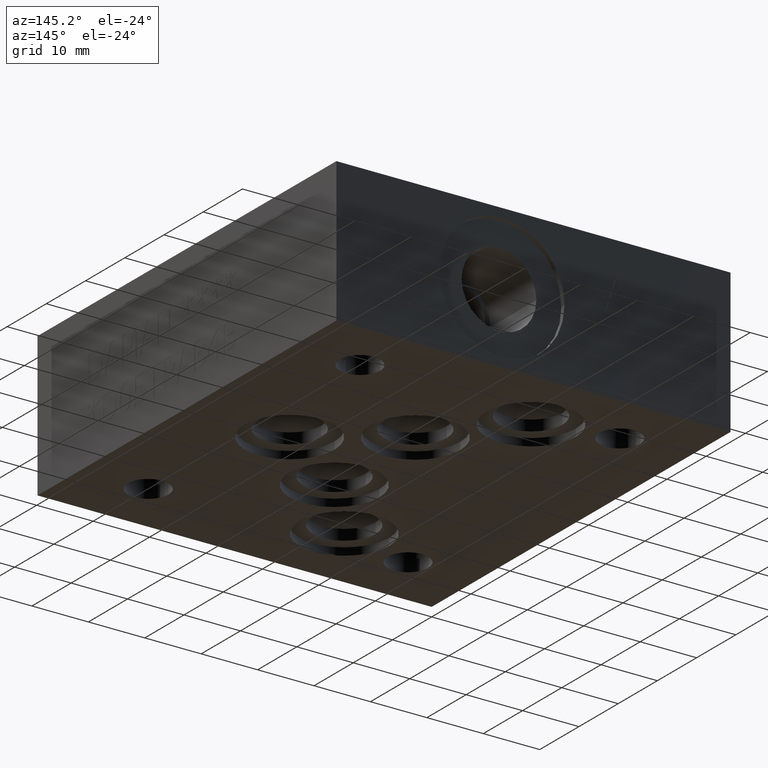
[diagram: clean part render]
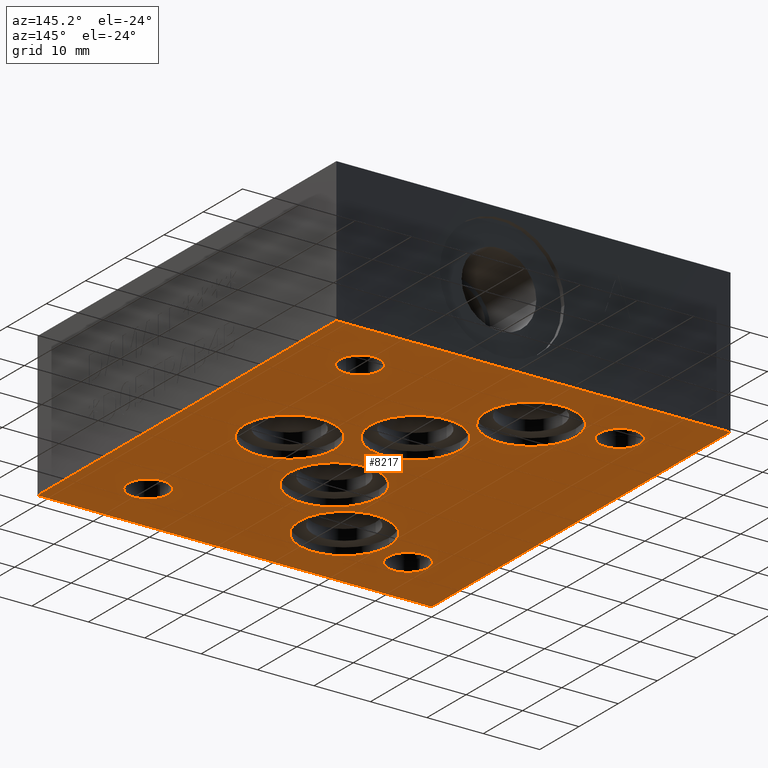
[diagram: same view with one face highlighted and labeled with its STEP entity id]
A machine part, auxiliary view. The second image highlights one B-rep face of the part: STEP entity #8217.
In plain terms, the highlighted planar face has unit normal (0, 0, 1).
Its self-contained STEP definition (entity closure, byte-faithful):
#75=CIRCLE('',#8565,7.9375);
#77=CIRCLE('',#8569,7.9375);
#79=CIRCLE('',#8573,7.9375);
#81=CIRCLE('',#8577,7.9375);
#83=CIRCLE('',#8581,7.9375);
#86=CIRCLE('',#8587,3.5687);
#88=CIRCLE('',#8591,3.5687);
#90=CIRCLE('',#8595,3.5687);
#92=CIRCLE('',#8599,3.5687);
#93=CIRCLE('',#8601,3.5687);
#94=CIRCLE('',#8602,3.5687);
#95=CIRCLE('',#8603,3.5687);
#96=CIRCLE('',#8604,3.5687);
#97=CIRCLE('',#8605,3.5687);
#98=CIRCLE('',#8606,3.5687);
#99=CIRCLE('',#8607,3.5687);
#100=CIRCLE('',#8608,3.5687);
#172=FACE_BOUND('',#1343,.T.);
#173=FACE_BOUND('',#1344,.T.);
#174=FACE_BOUND('',#1345,.T.);
#175=FACE_BOUND('',#1346,.T.);
#176=FACE_BOUND('',#1347,.T.);
#177=FACE_BOUND('',#1348,.T.);
#178=FACE_BOUND('',#1349,.T.);
#179=FACE_BOUND('',#1350,.T.);
#180=FACE_BOUND('',#1351,.T.);
#471=PLANE('',#8600);
#872=FACE_OUTER_BOUND('',#1342,.T.);
#1342=EDGE_LOOP('',(#7214,#7215,#7216,#7217));
#1343=EDGE_LOOP('',(#7218));
#1344=EDGE_LOOP('',(#7219));
#1345=EDGE_LOOP('',(#7220));
#1346=EDGE_LOOP('',(#7221));
#1347=EDGE_LOOP('',(#7222));
#1348=EDGE_LOOP('',(#7223,#7224,#7225));
#1349=EDGE_LOOP('',(#7226,#7227,#7228));
#1350=EDGE_LOOP('',(#7229,#7230,#7231));
#1351=EDGE_LOOP('',(#7232,#7233,#7234));
#1745=LINE('',#12215,#2605);
#2159=LINE('',#13200,#3019);
#2206=LINE('',#13535,#3066);
#2232=LINE('',#13749,#3092);
#2605=VECTOR('',#9225,10.);
#3019=VECTOR('',#9951,10.);
#3066=VECTOR('',#10024,10.);
#3092=VECTOR('',#10168,10.);
#3628=VERTEX_POINT('',#12213);
#3629=VERTEX_POINT('',#12214);
#3916=VERTEX_POINT('',#13199);
#3967=VERTEX_POINT('',#13534);
#3985=VERTEX_POINT('',#13588);
#3987=VERTEX_POINT('',#13595);
#3989=VERTEX_POINT('',#13602);
#3991=VERTEX_POINT('',#13609);
#3993=VERTEX_POINT('',#13616);
#3997=VERTEX_POINT('',#13648);
#3998=VERTEX_POINT('',#13650);
#4001=VERTEX_POINT('',#13679);
#4002=VERTEX_POINT('',#13681);
#4005=VERTEX_POINT('',#13712);
#4006=VERTEX_POINT('',#13714);
#4009=VERTEX_POINT('',#13743);
#4010=VERTEX_POINT('',#13745);
#4011=VERTEX_POINT('',#13750);
#4012=VERTEX_POINT('',#13753);
#4013=VERTEX_POINT('',#13756);
#4014=VERTEX_POINT('',#13759);
#4533=EDGE_CURVE('',#3628,#3629,#1745,.T.);
#4963=EDGE_CURVE('',#3629,#3916,#2159,.T.);
#5039=EDGE_CURVE('',#3967,#3628,#2206,.T.);
#5063=EDGE_CURVE('',#3985,#3985,#75,.T.);
#5066=EDGE_CURVE('',#3987,#3987,#77,.T.);
#5069=EDGE_CURVE('',#3989,#3989,#79,.T.);
#5072=EDGE_CURVE('',#3991,#3991,#81,.T.);
#5075=EDGE_CURVE('',#3993,#3993,#83,.T.);
#5082=EDGE_CURVE('',#3997,#3998,#86,.T.);
#5087=EDGE_CURVE('',#4001,#4002,#88,.T.);
#5092=EDGE_CURVE('',#4005,#4006,#90,.T.);
#5097=EDGE_CURVE('',#4009,#4010,#92,.T.);
#5098=EDGE_CURVE('',#3916,#3967,#2232,.T.);
#5099=EDGE_CURVE('',#4002,#4011,#93,.T.);
#5100=EDGE_CURVE('',#4011,#4001,#94,.T.);
#5101=EDGE_CURVE('',#4010,#4012,#95,.T.);
#5102=EDGE_CURVE('',#4012,#4009,#96,.T.);
#5103=EDGE_CURVE('',#3998,#4013,#97,.T.);
#5104=EDGE_CURVE('',#4013,#3997,#98,.T.);
#5105=EDGE_CURVE('',#4006,#4014,#99,.T.);
#5106=EDGE_CURVE('',#4014,#4005,#100,.T.);
#7214=ORIENTED_EDGE('',*,*,#5039,.F.);
#7215=ORIENTED_EDGE('',*,*,#5098,.F.);
#7216=ORIENTED_EDGE('',*,*,#4963,.F.);
#7217=ORIENTED_EDGE('',*,*,#4533,.F.);
#7218=ORIENTED_EDGE('',*,*,#5063,.T.);
#7219=ORIENTED_EDGE('',*,*,#5066,.T.);
#7220=ORIENTED_EDGE('',*,*,#5069,.T.);
#7221=ORIENTED_EDGE('',*,*,#5072,.T.);
#7222=ORIENTED_EDGE('',*,*,#5075,.T.);
#7223=ORIENTED_EDGE('',*,*,#5087,.T.);
#7224=ORIENTED_EDGE('',*,*,#5099,.T.);
#7225=ORIENTED_EDGE('',*,*,#5100,.T.);
#7226=ORIENTED_EDGE('',*,*,#5097,.T.);
#7227=ORIENTED_EDGE('',*,*,#5101,.T.);
#7228=ORIENTED_EDGE('',*,*,#5102,.T.);
#7229=ORIENTED_EDGE('',*,*,#5082,.T.);
#7230=ORIENTED_EDGE('',*,*,#5103,.T.);
#7231=ORIENTED_EDGE('',*,*,#5104,.T.);
#7232=ORIENTED_EDGE('',*,*,#5092,.T.);
#7233=ORIENTED_EDGE('',*,*,#5105,.T.);
#7234=ORIENTED_EDGE('',*,*,#5106,.T.);
#8217=ADVANCED_FACE('',(#872,#172,#173,#174,#175,#176,#177,#178,#179,#180),
#471,.F.);
#8565=AXIS2_PLACEMENT_3D('',#13589,#10083,#10084);
#8569=AXIS2_PLACEMENT_3D('',#13596,#10092,#10093);
#8573=AXIS2_PLACEMENT_3D('',#13603,#10101,#10102);
#8577=AXIS2_PLACEMENT_3D('',#13610,#10110,#10111);
#8581=AXIS2_PLACEMENT_3D('',#13617,#10119,#10120);
#8587=AXIS2_PLACEMENT_3D('',#13652,#10134,#10135);
#8591=AXIS2_PLACEMENT_3D('',#13683,#10144,#10145);
#8595=AXIS2_PLACEMENT_3D('',#13716,#10154,#10155);
#8599=AXIS2_PLACEMENT_3D('',#13747,#10164,#10165);
#8600=AXIS2_PLACEMENT_3D('',#13748,#10166,#10167);
#8601=AXIS2_PLACEMENT_3D('',#13751,#10169,#10170);
#8602=AXIS2_PLACEMENT_3D('',#13752,#10171,#10172);
#8603=AXIS2_PLACEMENT_3D('',#13754,#10173,#10174);
#8604=AXIS2_PLACEMENT_3D('',#13755,#10175,#10176);
#8605=AXIS2_PLACEMENT_3D('',#13757,#10177,#10178);
#8606=AXIS2_PLACEMENT_3D('',#13758,#10179,#10180);
#8607=AXIS2_PLACEMENT_3D('',#13760,#10181,#10182);
#8608=AXIS2_PLACEMENT_3D('',#13761,#10183,#10184);
#9225=DIRECTION('',(0.,1.,0.));
#9951=DIRECTION('',(-1.,0.,0.));
#10024=DIRECTION('',(1.,0.,0.));
#10083=DIRECTION('center_axis',(0.,0.,1.));
#10084=DIRECTION('ref_axis',(1.,0.,0.));
#10092=DIRECTION('center_axis',(0.,0.,1.));
#10093=DIRECTION('ref_axis',(1.,0.,0.));
#10101=DIRECTION('center_axis',(0.,0.,1.));
#10102=DIRECTION('ref_axis',(1.,0.,0.));
#10110=DIRECTION('center_axis',(0.,0.,1.));
#10111=DIRECTION('ref_axis',(1.,0.,0.));
#10119=DIRECTION('center_axis',(0.,0.,1.));
#10120=DIRECTION('ref_axis',(1.,0.,0.));
#10134=DIRECTION('center_axis',(0.,0.,1.));
#10135=DIRECTION('ref_axis',(1.,0.,0.));
#10144=DIRECTION('center_axis',(0.,0.,1.));
#10145=DIRECTION('ref_axis',(1.,0.,0.));
#10154=DIRECTION('center_axis',(0.,0.,1.));
#10155=DIRECTION('ref_axis',(1.,0.,0.));
#10164=DIRECTION('center_axis',(0.,0.,1.));
#10165=DIRECTION('ref_axis',(1.,0.,0.));
#10166=DIRECTION('center_axis',(0.,0.,1.));
#10167=DIRECTION('ref_axis',(1.,0.,0.));
#10168=DIRECTION('',(0.,-1.,0.));
#10169=DIRECTION('center_axis',(0.,0.,1.));
#10170=DIRECTION('ref_axis',(1.,0.,0.));
#10171=DIRECTION('center_axis',(0.,0.,1.));
#10172=DIRECTION('ref_axis',(1.,0.,0.));
#10173=DIRECTION('center_axis',(0.,0.,1.));
#10174=DIRECTION('ref_axis',(1.,0.,0.));
#10175=DIRECTION('center_axis',(0.,0.,1.));
#10176=DIRECTION('ref_axis',(1.,0.,0.));
#10177=DIRECTION('center_axis',(0.,0.,1.));
#10178=DIRECTION('ref_axis',(1.,0.,0.));
#10179=DIRECTION('center_axis',(0.,0.,1.));
#10180=DIRECTION('ref_axis',(1.,0.,0.));
#10181=DIRECTION('center_axis',(0.,0.,1.));
#10182=DIRECTION('ref_axis',(1.,0.,0.));
#10183=DIRECTION('center_axis',(0.,0.,1.));
#10184=DIRECTION('ref_axis',(1.,0.,0.));
#12213=CARTESIAN_POINT('',(69.85,0.,0.));
#12214=CARTESIAN_POINT('',(69.85,76.2,0.));
#12215=CARTESIAN_POINT('',(69.85,0.,0.));
#13199=CARTESIAN_POINT('',(0.,76.2,0.));
#13200=CARTESIAN_POINT('',(69.85,76.2,0.));
#13534=CARTESIAN_POINT('',(0.,0.,0.));
#13535=CARTESIAN_POINT('',(0.,0.,0.));
#13588=CARTESIAN_POINT('',(28.60675,27.7749,0.));
#13589=CARTESIAN_POINT('Origin',(36.54425,27.7749,0.));
#13595=CARTESIAN_POINT('',(17.48155,61.9125,0.));
#13596=CARTESIAN_POINT('Origin',(25.41905,61.9125,0.));
#13602=CARTESIAN_POINT('',(43.69435,38.0873,0.));
#13603=CARTESIAN_POINT('Origin',(51.63185,38.0873,0.));
#13609=CARTESIAN_POINT('',(28.58135,48.3997,0.));
#13610=CARTESIAN_POINT('Origin',(36.51885,48.3997,0.));
#13616=CARTESIAN_POINT('',(17.48155,14.2875,0.));
#13617=CARTESIAN_POINT('Origin',(25.41905,14.2875,0.));
#13648=CARTESIAN_POINT('',(54.7613389997801,9.52288199989004,0.));
#13650=CARTESIAN_POINT('',(61.1452110002199,12.71481800011,0.));
#13652=CARTESIAN_POINT('Origin',(57.95645,11.1125,0.));
#13679=CARTESIAN_POINT('',(8.44095075315562,64.2346689382886,0.));
#13681=CARTESIAN_POINT('',(15.3651992468444,65.9657310617114,0.));
#13683=CARTESIAN_POINT('Origin',(11.90625,65.0875,0.));
#13712=CARTESIAN_POINT('',(57.953275,61.5315014123668,0.));
#13714=CARTESIAN_POINT('',(57.953275,68.6688985876332,0.));
#13716=CARTESIAN_POINT('Origin',(57.95645,65.1002,0.));
#13743=CARTESIAN_POINT('',(8.72383899978029,9.52288199988959,0.));
#13745=CARTESIAN_POINT('',(15.1077110002197,12.7148180001104,0.));
#13747=CARTESIAN_POINT('Origin',(11.91895,11.1125,0.));
#13748=CARTESIAN_POINT('Origin',(34.925,38.1,0.));
#13749=CARTESIAN_POINT('',(0.,76.2,0.));
#13750=CARTESIAN_POINT('',(8.3312,65.1129,0.));
#13751=CARTESIAN_POINT('Origin',(11.8999,65.1129,0.));
#13752=CARTESIAN_POINT('Origin',(11.8999,65.1129,0.));
#13753=CARTESIAN_POINT('',(8.3439,11.1252,0.));
#13754=CARTESIAN_POINT('Origin',(11.9126,11.1252,0.));
#13755=CARTESIAN_POINT('Origin',(11.9126,11.1252,0.));
#13756=CARTESIAN_POINT('',(54.3814,11.1252,0.));
#13757=CARTESIAN_POINT('Origin',(57.9501,11.1252,0.));
#13758=CARTESIAN_POINT('Origin',(57.9501,11.1252,0.));
#13759=CARTESIAN_POINT('',(54.3814,65.1002,0.));
#13760=CARTESIAN_POINT('Origin',(57.9501,65.1002,0.));
#13761=CARTESIAN_POINT('Origin',(57.9501,65.1002,0.));